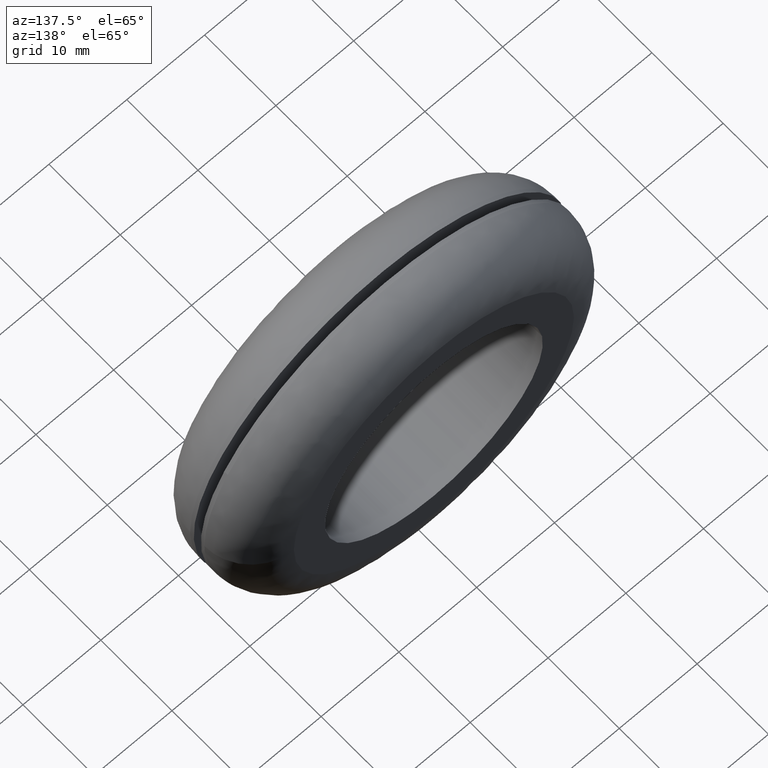
[diagram: clean part render]
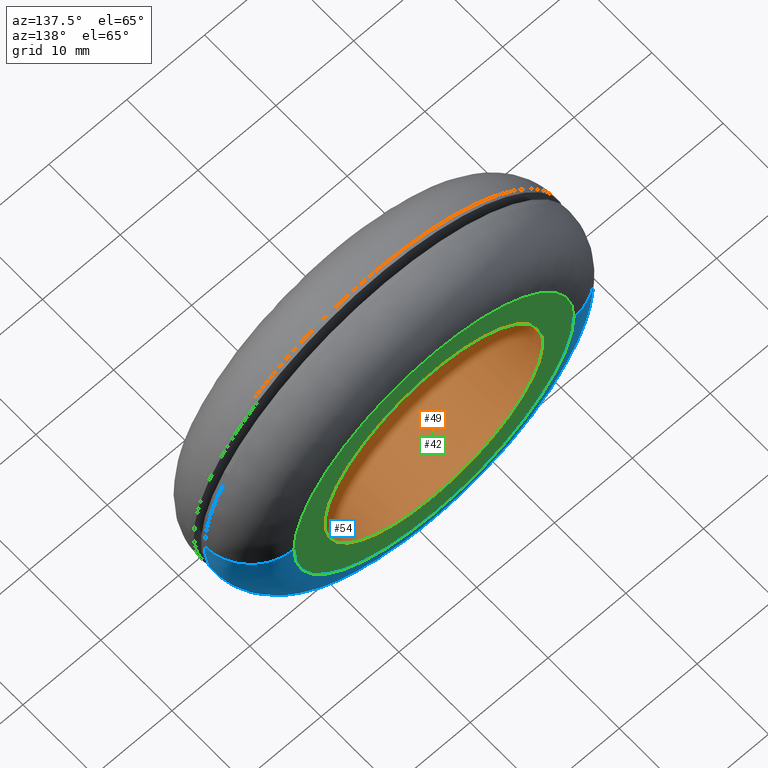
[diagram: same view with three faces highlighted in distinct colors, each labeled with its STEP entity id]
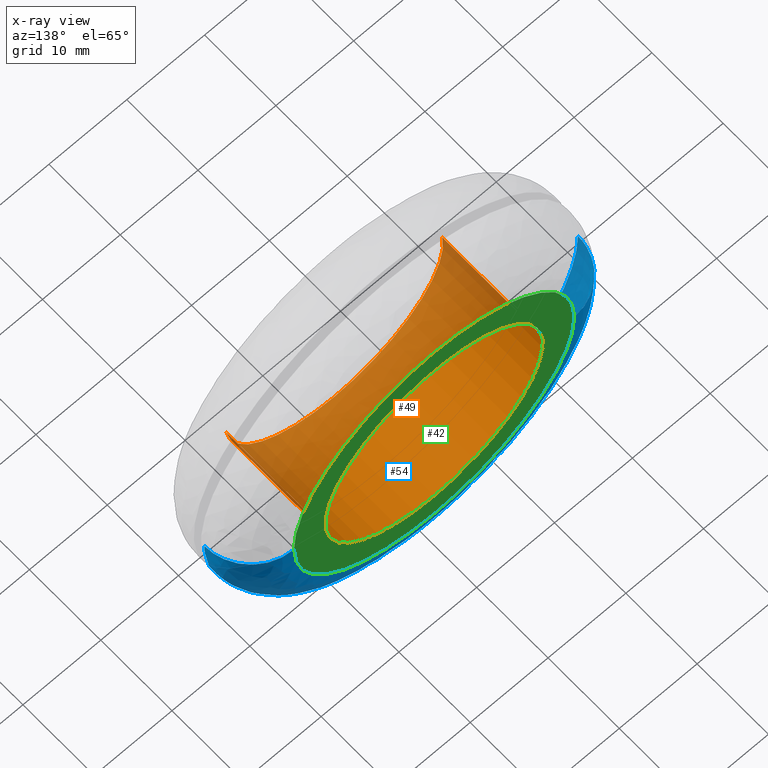
[diagram: x-ray of the same camera — body ghosted, the three highlighted faces saturated]
A machine part, auxiliary view with three faces highlighted in distinct colors.
The next image is the same camera in x-ray (body ghosted, the three faces saturated) — at least one of them is partly hidden behind the body in this view.
Their STEP definitions:

[orange] entity #49 — the highlighted cylindrical surface (partial cylindrical patch) has radius 14 mm, axis along (-0, 1, -0).
#49=ADVANCED_FACE('',(#151),#150,.F.);
#150=CYLINDRICAL_SURFACE('',#272,1.40000000000E+001);
#151=FACE_OUTER_BOUND('',#273,.T.);
#269=CARTESIAN_POINT('',(7.75920443272E-016,1.43500000000E+001,-5.97720691732E-015));
#270=DIRECTION('',(-8.60270273437E-017,1.00000000000E+000,-1.86253946138E-016));
#271=DIRECTION('',(-9.93009526364E-001,-6.34413156929E-017,1.18034234657E-001));
#272=AXIS2_PLACEMENT_3D('',#269,#270,#271);
#273=EDGE_LOOP('',(#440,#441,#442,#443,#444,#445));
#440=ORIENTED_EDGE('',*,*,#503,.F.);
#441=ORIENTED_EDGE('',*,*,#505,.F.);
#442=ORIENTED_EDGE('',*,*,#523,.F.);
#443=ORIENTED_EDGE('',*,*,#509,.T.);
#444=ORIENTED_EDGE('',*,*,#511,.T.);
#445=ORIENTED_EDGE('',*,*,#524,.T.);
#503=EDGE_CURVE('',#643,#644,#645,.T.);
#505=EDGE_CURVE('',#651,#643,#658,.T.);
#509=EDGE_CURVE('',#685,#686,#687,.T.);
#511=EDGE_CURVE('',#686,#693,#700,.T.);
#523=EDGE_CURVE('',#685,#651,#779,.T.);
#524=EDGE_CURVE('',#693,#644,#785,.T.);
#643=VERTEX_POINT('',#951);
#644=VERTEX_POINT('',#952);
#645=CIRCLE('',#956,1.40000000000E+001);
#651=VERTEX_POINT('',#957);
#658=CIRCLE('',#965,1.40000000000E+001);
#685=VERTEX_POINT('',#981);
#686=VERTEX_POINT('',#982);
#687=CIRCLE('',#986,1.40000000000E+001);
#693=VERTEX_POINT('',#987);
#700=CIRCLE('',#995,1.40000000000E+001);
#779=(BOUNDED_CURVE() B_SPLINE_CURVE(1,(#1039,#1040),.UNSPECIFIED.,.F.,.F.) B_SPLINE_CURVE_WITH_KNOTS((2,2),(8.33333328360E-002,9.16666666871E-001),.UNSPECIFIED.) CURVE() GEOMETRIC_REPRESENTATION_ITEM() RATIONAL_B_SPLINE_CURVE((1.00000000000E+000,1.00000000000E+000)) REPRESENTATION_ITEM('') );
#785=(BOUNDED_CURVE() B_SPLINE_CURVE(1,(#1041,#1042),.UNSPECIFIED.,.F.,.F.) B_SPLINE_CURVE_WITH_KNOTS((2,2),(8.33333333333E-002,9.16666666667E-001),.UNSPECIFIED.) CURVE() GEOMETRIC_REPRESENTATION_ITEM() RATIONAL_B_SPLINE_CURVE((7.50000000000E-001,7.50000000000E-001)) REPRESENTATION_ITEM('') );
#951=CARTESIAN_POINT('',(1.11022302463E-015,1.40000000000E+001,-1.40000000000E+001));
#952=CARTESIAN_POINT('',(1.39018475527E+001,1.40000000000E+001,-1.65488205683E+000));
#953=CARTESIAN_POINT('',(2.16537898723E-012,1.40000000000E+001,4.77218264905E-012));
#954=DIRECTION('',(9.52526781279E-015,-1.00000000000E+000,6.40109698827E-014));
#955=DIRECTION('',(-1.54209978120E-013,-6.40109698827E-014,-1.00000000000E+000));
#956=AXIS2_PLACEMENT_3D('',#953,#954,#955);
#957=CARTESIAN_POINT('',(-1.39021339734E+001,1.40000000000E+001,1.65247420126E+000));
#962=CARTESIAN_POINT('',(2.16537898723E-012,1.40000000000E+001,4.77218264905E-012));
#963=DIRECTION('',(9.52526781279E-015,-1.00000000000E+000,6.40109698827E-014));
#964=DIRECTION('',(-1.54209978120E-013,-6.40109698827E-014,-1.00000000000E+000));
#965=AXIS2_PLACEMENT_3D('',#962,#963,#964);
#981=CARTESIAN_POINT('',(-1.39021339734E+001,-3.57746327589E-015,1.65247420126E+000));
#982=CARTESIAN_POINT('',(-1.99840144433E-015,-1.17302865201E-014,-1.40000000000E+001));
#983=CARTESIAN_POINT('',(2.11919370940E-012,-3.32607091481E-015,4.66915395236E-012));
#984=DIRECTION('',(8.94376696722E-017,-1.00000000000E+000,6.00301114664E-016));
#985=DIRECTION('',(-1.51142987015E-013,-6.00301114664E-016,-1.00000000000E+000));
#986=AXIS2_PLACEMENT_3D('',#983,#984,#985);
#987=CARTESIAN_POINT('',(1.39018475527E+001,-3.07614960891E-015,-1.65488205683E+000));
#992=CARTESIAN_POINT('',(2.11919370940E-012,-3.32607091481E-015,4.66915395236E-012));
#993=DIRECTION('',(8.94376696722E-017,-1.00000000000E+000,6.00301114664E-016));
#994=DIRECTION('',(-1.51142987015E-013,-6.00301114664E-016,-1.00000000000E+000));
#995=AXIS2_PLACEMENT_3D('',#992,#993,#994);
#1039=CARTESIAN_POINT('',(-1.39021333691E+001,-8.35586111414E-009,1.65247928519E+000));
#1040=CARTESIAN_POINT('',(-1.39021333691E+001,1.40000000034E+001,1.65247928519E+000));
#1041=CARTESIAN_POINT('',(1.39021333691E+001,-3.99680288865E-015,-1.65247928519E+000));
#1042=CARTESIAN_POINT('',(1.39021333691E+001,1.40000000000E+001,-1.65247928519E+000));

[blue] entity #54 — the highlighted face is a freeform B-spline surface patch.
#54=ADVANCED_FACE('',(#201),#200,.T.);
#200=( BOUNDED_SURFACE() B_SPLINE_SURFACE( 2,2,((#336,#337,#338,#339,#340),(#341,#342,#343,#344,#345),(#346,#347,#348,#349,#350),(#351,#352,#353,#354,#355),(#356,#357,#358,#359,#360)), .UNSPECIFIED.,.F.,.F.,.F.) B_SPLINE_SURFACE_WITH_KNOTS((3,2,3),(3,2,3),(0.00000000000E+000,5.00000000000E-001,1.00000000000E+000),(0.00000000000E+000,5.00000000000E-001,1.00000000000E+000), .UNSPECIFIED. ) GEOMETRIC_REPRESENTATION_ITEM() RATIONAL_B_SPLINE_SURFACE(((1.00000000000E+000,7.07106780923E-001,1.00000000000E+000,7.07106780923E-001,1.00000000000E+000),(7.07106781187E-001,4.99999999814E-001,7.07106781187E-001,4.99999999814E-001,7.07106781187E-001),(1.00000000000E+000,7.07106780923E-001,1.00000000000E+000,7.07106780923E-001,1.00000000000E+000),(7.07106781187E-001,4.99999999814E-001,7.07106781187E-001,4.99999999814E-001,7.07106781187E-001),(1.00000000000E+000,7.07106780923E-001,1.00000000000E+000,7.07106780923E-001,1.00000000000E+000))) REPRESENTATION_ITEM('') SURFACE() );
#201=FACE_OUTER_BOUND('',#361,.T.);
#336=CARTESIAN_POINT('',(-1.20000000000E+001,7.99999999108E+000,1.53354542896E-013));
#337=CARTESIAN_POINT('',(-1.19999999911E+001,1.39999999955E+001,-4.13591451213E-014));
#338=CARTESIAN_POINT('',(-1.79999999955E+001,1.40000000000E+001,-4.20939090792E-014));
#339=CARTESIAN_POINT('',(-2.40000000000E+001,1.40000000045E+001,-4.28286730372E-014));
#340=CARTESIAN_POINT('',(-2.40000000000E+001,8.00000000003E+000,1.51885014982E-013));
#341=CARTESIAN_POINT('',(-1.20000000000E+001,7.99999999108E+000,-1.20000000000E+001));
#342=CARTESIAN_POINT('',(-1.19999999911E+001,1.39999999955E+001,-1.19999999911E+001));
#343=CARTESIAN_POINT('',(-1.79999999955E+001,1.40000000000E+001,-1.79999999955E+001));
#344=CARTESIAN_POINT('',(-2.40000000000E+001,1.40000000045E+001,-2.40000000000E+001));
#345=CARTESIAN_POINT('',(-2.40000000000E+001,8.00000000003E+000,-2.40000000000E+001));
#346=CARTESIAN_POINT('',(-1.49459690267E-012,7.99999999107E+000,-1.20000000000E+001));
#347=CARTESIAN_POINT('',(2.47732892202E-012,1.39999999955E+001,-1.19999999911E+001));
#348=CARTESIAN_POINT('',(2.47769629475E-012,1.40000000000E+001,-1.79999999955E+001));
#349=CARTESIAN_POINT('',(2.47806366748E-012,1.40000000045E+001,-2.40000000000E+001));
#350=CARTESIAN_POINT('',(-1.49386215720E-012,8.00000000001E+000,-2.40000000000E+001));
#351=CARTESIAN_POINT('',(1.20000000000E+001,7.99999999106E+000,-1.20000000000E+001));
#352=CARTESIAN_POINT('',(1.19999999911E+001,1.39999999955E+001,-1.19999999911E+001));
#353=CARTESIAN_POINT('',(1.79999999955E+001,1.40000000000E+001,-1.79999999955E+001));
#354=CARTESIAN_POINT('',(2.40000000000E+001,1.40000000045E+001,-2.40000000000E+001));
#355=CARTESIAN_POINT('',(2.40000000000E+001,8.00000000000E+000,-2.40000000000E+001));
#356=CARTESIAN_POINT('',(1.20000000000E+001,7.99999999106E+000,1.54824021987E-013));
#357=CARTESIAN_POINT('',(1.19999999911E+001,1.39999999955E+001,-3.98896660322E-014));
#358=CARTESIAN_POINT('',(1.79999999955E+001,1.40000000000E+001,-3.98896904445E-014));
#359=CARTESIAN_POINT('',(2.40000000000E+001,1.40000000045E+001,-3.98897148568E-014));
#360=CARTESIAN_POINT('',(2.40000000000E+001,8.00000000000E+000,1.54823973162E-013));
#361=EDGE_LOOP('',(#474,#475,#476,#477,#478,#479,#480,#481));
#474=ORIENTED_EDGE('',*,*,#532,.F.);
#475=ORIENTED_EDGE('',*,*,#531,.F.);
#476=ORIENTED_EDGE('',*,*,#530,.F.);
#477=ORIENTED_EDGE('',*,*,#527,.F.);
#478=ORIENTED_EDGE('',*,*,#536,.F.);
#479=ORIENTED_EDGE('',*,*,#500,.T.);
#480=ORIENTED_EDGE('',*,*,#502,.T.);
#481=ORIENTED_EDGE('',*,*,#537,.T.);
#500=EDGE_CURVE('',#622,#623,#624,.T.);
#502=EDGE_CURVE('',#623,#630,#637,.T.);
#527=EDGE_CURVE('',#799,#806,#807,.T.);
#530=EDGE_CURVE('',#806,#825,#826,.T.);
#531=EDGE_CURVE('',#825,#832,#833,.T.);
#532=EDGE_CURVE('',#832,#839,#840,.T.);
#536=EDGE_CURVE('',#622,#799,#864,.T.);
#537=EDGE_CURVE('',#630,#839,#870,.T.);
#622=VERTEX_POINT('',#936);
#623=VERTEX_POINT('',#937);
#624=CIRCLE('',#941,1.80000000011E+001);
#630=VERTEX_POINT('',#942);
#637=CIRCLE('',#950,1.80000000011E+001);
#799=VERTEX_POINT('',#1049);
#806=VERTEX_POINT('',#1054);
#807=CIRCLE('',#1058,2.40000000000E+001);
#825=VERTEX_POINT('',#1063);
#826=CIRCLE('',#1067,2.40000000000E+001);
#832=VERTEX_POINT('',#1068);
#833=CIRCLE('',#1072,2.40000000000E+001);
#839=VERTEX_POINT('',#1073);
#840=CIRCLE('',#1077,2.40000000000E+001);
#864=(BOUNDED_CURVE() B_SPLINE_CURVE(2,(#1090,#1091,#1092),.UNSPECIFIED.,.F.,.F.) B_SPLINE_CURVE_WITH_KNOTS((3,3),(5.00000000000E-001,1.00000000000E+000),.UNSPECIFIED.) CURVE() GEOMETRIC_REPRESENTATION_ITEM() RATIONAL_B_SPLINE_CURVE((1.00000000000E+000,7.07106780923E-001,1.00000000000E+000)) REPRESENTATION_ITEM('') );
#870=(BOUNDED_CURVE() B_SPLINE_CURVE(3,(#1093,#1094,#1095,#1096,#1097),.UNSPECIFIED.,.F.,.F.) B_SPLINE_CURVE_WITH_KNOTS((4,1,4),(4.99999892550E-001,7.49999938093E-001,1.00000000000E+000),.UNSPECIFIED.) CURVE() GEOMETRIC_REPRESENTATION_ITEM() RATIONAL_B_SPLINE_CURVE((1.00000000000E+000,1.00000000000E+000,1.00000000000E+000,1.00000000000E+000,1.00000000000E+000)) REPRESENTATION_ITEM('') );
#936=CARTESIAN_POINT('',(-1.80000000015E+001,1.40000000000E+001,-4.69586323361E-014));
#937=CARTESIAN_POINT('',(-5.55111512313E-015,1.40000000000E+001,-1.80000000022E+001));
#938=CARTESIAN_POINT('',(-4.71111150091E-010,1.40000000000E+001,-1.07552899919E-009));
#939=DIRECTION('',(1.48416595408E-016,-1.00000000000E+000,2.12316646335E-015));
#940=DIRECTION('',(2.61729110607E-011,-2.12316646335E-015,-1.00000000000E+000));
#941=AXIS2_PLACEMENT_3D('',#938,#939,#940);
#942=CARTESIAN_POINT('',(1.79999999037E+001,1.40000000000E+001,1.86809333903E-003));
#947=CARTESIAN_POINT('',(-4.71111150091E-010,1.40000000000E+001,-1.07552899919E-009));
#948=DIRECTION('',(1.48416595408E-016,-1.00000000000E+000,2.12316646335E-015));
#949=DIRECTION('',(2.61729110607E-011,-2.12316646335E-015,-1.00000000000E+000));
#950=AXIS2_PLACEMENT_3D('',#947,#948,#949);
#1049=CARTESIAN_POINT('',(-2.40000000000E+001,7.99999999994E+000,1.51814509099E-013));
#1054=CARTESIAN_POINT('',(-2.09987142586E+001,7.99999999559E+000,-1.16212735741E+001));
#1055=CARTESIAN_POINT('',(-1.42108547152E-014,8.00000000010E+000,-1.95399252334E-014));
#1056=DIRECTION('',(6.33902254529E-012,-1.00000000000E+000,3.75954382491E-010));
#1057=DIRECTION('',(9.99921044204E-001,1.61426427780E-012,-1.25660398839E-002));
#1058=AXIS2_PLACEMENT_3D('',#1055,#1056,#1057);
#1063=CARTESIAN_POINT('',(0.00000000000E+000,8.00000000000E+000,-2.40000000000E+001));
#1064=CARTESIAN_POINT('',(-1.42108547152E-014,8.00000000010E+000,-1.95399252334E-014));
#1065=DIRECTION('',(6.33902254529E-012,-1.00000000000E+000,3.75954382491E-010));
#1066=DIRECTION('',(9.99921044204E-001,1.61426427780E-012,-1.25660398839E-002));
#1067=AXIS2_PLACEMENT_3D('',#1064,#1065,#1066);
#1068=CARTESIAN_POINT('',(2.39415761722E+001,8.00000000006E+000,-1.67359803781E+000));
#1069=CARTESIAN_POINT('',(-2.04813943583E-012,8.00000000006E+000,2.19380069666E-012));
#1070=DIRECTION('',(-2.66198800683E-028,-1.00000000000E+000,2.54315087507E-012));
#1071=DIRECTION('',(-8.53391431595E-014,2.54315087507E-012,1.00000000000E+000));
#1072=AXIS2_PLACEMENT_3D('',#1069,#1070,#1071);
#1073=CARTESIAN_POINT('',(2.40000000000E+001,7.99999999994E+000,4.86240192832E-006));
#1074=CARTESIAN_POINT('',(3.24718030242E-012,8.00000000072E+000,-1.59872115546E-014));
#1075=DIRECTION('',(-3.24176141859E-011,-1.00000000000E+000,-6.56673915600E-011));
#1076=DIRECTION('',(-9.97565673840E-001,2.77594984037E-011,6.97332515756E-002));
#1077=AXIS2_PLACEMENT_3D('',#1074,#1075,#1076);
#1090=CARTESIAN_POINT('',(-1.79999999955E+001,1.40000000000E+001,-4.20939090792E-014));
#1091=CARTESIAN_POINT('',(-2.40000000000E+001,1.40000000045E+001,-4.28286730372E-014));
#1092=CARTESIAN_POINT('',(-2.40000000000E+001,8.00000000003E+000,1.51885014982E-013));
#1093=CARTESIAN_POINT('',(1.79999981720E+001,1.40000000000E+001,-3.73034938697E-014));
#1094=CARTESIAN_POINT('',(1.95638642930E+001,1.40145783920E+001,-3.74416234275E-014));
#1095=CARTESIAN_POINT('',(2.26960588991E+001,1.26960604319E+001,6.28007326824E-015));
#1096=CARTESIAN_POINT('',(2.40145779210E+001,9.56386622895E+000,1.08820357280E-013));
#1097=CARTESIAN_POINT('',(2.40000000000E+001,8.00000000000E+000,1.59872115546E-013));

[green] entity #42 — the highlighted planar face has unit normal (0, -1, 0).
#42=ADVANCED_FACE('',(#79,#80),#78,.F.);
#78=PLANE('',#235);
#79=FACE_OUTER_BOUND('',#236,.T.);
#80=FACE_BOUND('',#237,.T.);
#232=CARTESIAN_POINT('',(-3.74122974457E+001,1.40000000000E+001,4.14000000015E+001));
#233=DIRECTION('',(0.00000000000E+000,-1.00000000000E+000,0.00000000000E+000));
#234=DIRECTION('',(0.00000000000E+000,0.00000000000E+000,-1.00000000000E+000));
#235=AXIS2_PLACEMENT_3D('',#232,#233,#234);
#236=EDGE_LOOP('',(#400,#401,#402));
#237=EDGE_LOOP('',(#403,#404,#405));
#400=ORIENTED_EDGE('',*,*,#500,.F.);
#401=ORIENTED_EDGE('',*,*,#501,.F.);
#402=ORIENTED_EDGE('',*,*,#502,.F.);
#403=ORIENTED_EDGE('',*,*,#503,.T.);
#404=ORIENTED_EDGE('',*,*,#504,.T.);
#405=ORIENTED_EDGE('',*,*,#505,.T.);
#500=EDGE_CURVE('',#622,#623,#624,.T.);
#501=EDGE_CURVE('',#630,#622,#631,.T.);
#502=EDGE_CURVE('',#623,#630,#637,.T.);
#503=EDGE_CURVE('',#643,#644,#645,.T.);
#504=EDGE_CURVE('',#644,#651,#652,.T.);
#505=EDGE_CURVE('',#651,#643,#658,.T.);
#622=VERTEX_POINT('',#936);
#623=VERTEX_POINT('',#937);
#624=CIRCLE('',#941,1.80000000011E+001);
#630=VERTEX_POINT('',#942);
#631=CIRCLE('',#946,1.80000000011E+001);
#637=CIRCLE('',#950,1.80000000011E+001);
#643=VERTEX_POINT('',#951);
#644=VERTEX_POINT('',#952);
#645=CIRCLE('',#956,1.40000000000E+001);
#651=VERTEX_POINT('',#957);
#652=CIRCLE('',#961,1.40000000000E+001);
#658=CIRCLE('',#965,1.40000000000E+001);
#936=CARTESIAN_POINT('',(-1.80000000015E+001,1.40000000000E+001,-4.69586323361E-014));
#937=CARTESIAN_POINT('',(-5.55111512313E-015,1.40000000000E+001,-1.80000000022E+001));
#938=CARTESIAN_POINT('',(-4.71111150091E-010,1.40000000000E+001,-1.07552899919E-009));
#939=DIRECTION('',(1.48416595408E-016,-1.00000000000E+000,2.12316646335E-015));
#940=DIRECTION('',(2.61729110607E-011,-2.12316646335E-015,-1.00000000000E+000));
#941=AXIS2_PLACEMENT_3D('',#938,#939,#940);
#942=CARTESIAN_POINT('',(1.79999999037E+001,1.40000000000E+001,1.86809333903E-003));
#943=CARTESIAN_POINT('',(-4.71111150091E-010,1.40000000000E+001,-1.07552899919E-009));
#944=DIRECTION('',(1.48416595408E-016,-1.00000000000E+000,2.12316646335E-015));
#945=DIRECTION('',(2.61729110607E-011,-2.12316646335E-015,-1.00000000000E+000));
#946=AXIS2_PLACEMENT_3D('',#943,#944,#945);
#947=CARTESIAN_POINT('',(-4.71111150091E-010,1.40000000000E+001,-1.07552899919E-009));
#948=DIRECTION('',(1.48416595408E-016,-1.00000000000E+000,2.12316646335E-015));
#949=DIRECTION('',(2.61729110607E-011,-2.12316646335E-015,-1.00000000000E+000));
#950=AXIS2_PLACEMENT_3D('',#947,#948,#949);
#951=CARTESIAN_POINT('',(1.11022302463E-015,1.40000000000E+001,-1.40000000000E+001));
#952=CARTESIAN_POINT('',(1.39018475527E+001,1.40000000000E+001,-1.65488205683E+000));
#953=CARTESIAN_POINT('',(2.16537898723E-012,1.40000000000E+001,4.77218264905E-012));
#954=DIRECTION('',(9.52526781279E-015,-1.00000000000E+000,6.40109698827E-014));
#955=DIRECTION('',(-1.54209978120E-013,-6.40109698827E-014,-1.00000000000E+000));
#956=AXIS2_PLACEMENT_3D('',#953,#954,#955);
#957=CARTESIAN_POINT('',(-1.39021339734E+001,1.40000000000E+001,1.65247420126E+000));
#958=CARTESIAN_POINT('',(2.16537898723E-012,1.40000000000E+001,4.77218264905E-012));
#959=DIRECTION('',(9.52526781279E-015,-1.00000000000E+000,6.40109698827E-014));
#960=DIRECTION('',(-1.54209978120E-013,-6.40109698827E-014,-1.00000000000E+000));
#961=AXIS2_PLACEMENT_3D('',#958,#959,#960);
#962=CARTESIAN_POINT('',(2.16537898723E-012,1.40000000000E+001,4.77218264905E-012));
#963=DIRECTION('',(9.52526781279E-015,-1.00000000000E+000,6.40109698827E-014));
#964=DIRECTION('',(-1.54209978120E-013,-6.40109698827E-014,-1.00000000000E+000));
#965=AXIS2_PLACEMENT_3D('',#962,#963,#964);